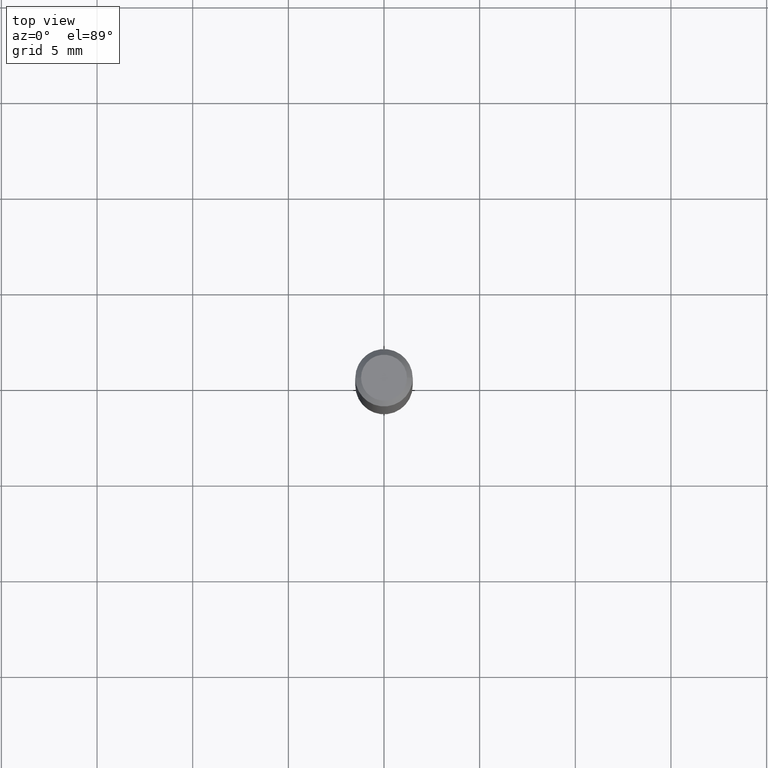
[diagram: clean part render]
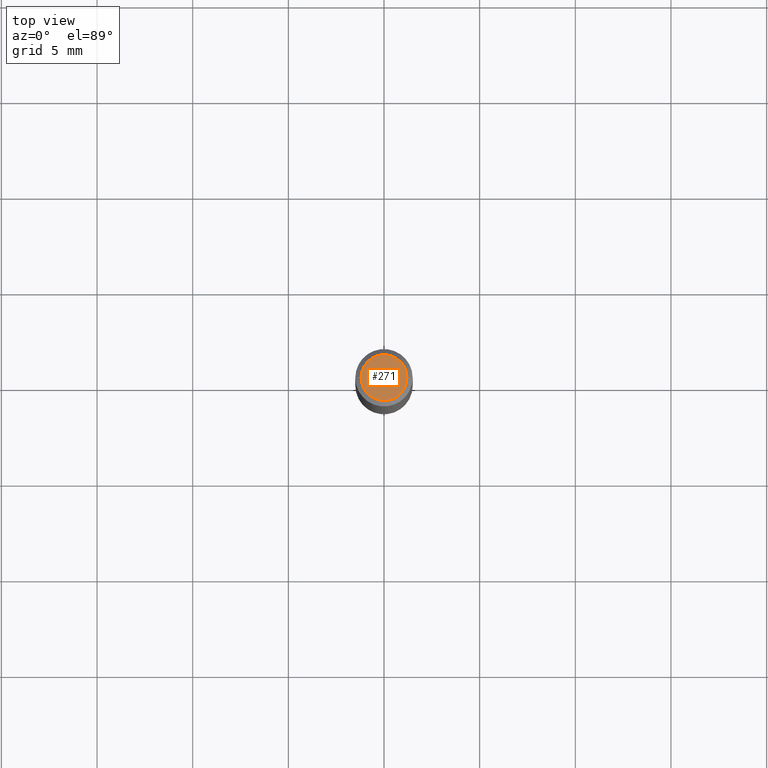
[diagram: same view with one face highlighted and labeled with its STEP entity id]
A machine part, top view. The second image highlights one B-rep face of the part: STEP entity #271.
In plain terms, the highlighted planar face has unit normal (0, -0, -1).
Its self-contained STEP definition (entity closure, byte-faithful):
#11 = CARTESIAN_POINT ( 'NONE',  ( 8.265746106709734507E-48, -1.180129479067563789E-33, -3.380025165646692144E-19 ) ) ;
#16 = DIRECTION ( 'NONE',  ( 1.000000000000000000, -6.982962677686266711E-15, 4.876185090822587894E-29 ) ) ;
#37 = ORIENTED_EDGE ( 'NONE', *, *, #444, .T. ) ;
#42 = CARTESIAN_POINT ( 'NONE',  ( 4.132873053354867254E-48, -5.900647395337818946E-34, -1.690012582823346072E-19 ) ) ;
#84 = FACE_OUTER_BOUND ( 'NONE', #452, .T. ) ;
#205 = DIRECTION ( 'NONE',  ( 2.438088387897960049E-29, -3.491481338843145188E-15, -1.000000000000000000 ) ) ;
#219 = CARTESIAN_POINT ( 'NONE',  ( 8.265746106709734507E-48, -1.180129479067563789E-33, -3.380025165646692144E-19 ) ) ;
#222 = DIRECTION ( 'NONE',  ( 1.000000000000000000, -6.982962677686266711E-15, 4.876185090822587894E-29 ) ) ;
#271 = ADVANCED_FACE ( 'NONE', ( #84 ), #317, .F. ) ;
#273 = CARTESIAN_POINT ( 'NONE',  ( -0.04724000000000000421, 3.504923541997677355E-16, -3.380025165670481712E-19 ) ) ;
#278 = VERTEX_POINT ( 'NONE', #273 ) ;
#283 = DIRECTION ( 'NONE',  ( -2.445468806185136597E-29, 3.491481338843145583E-15, 1.000000000000000000 ) ) ;
#286 = CARTESIAN_POINT ( 'NONE',  ( 0.04724000000000000421, -3.852183633974369345E-16, -3.380025165621689721E-19 ) ) ;
#299 = CIRCLE ( 'NONE', #389, 0.04724000000000000421 ) ;
#317 = PLANE ( 'NONE',  #396 ) ;
#339 = EDGE_CURVE ( 'NONE', #418, #278, #487, .T. ) ;
#345 = ORIENTED_EDGE ( 'NONE', *, *, #339, .T. ) ;
#373 = AXIS2_PLACEMENT_3D ( 'NONE', #219, #404, #222 ) ;
#389 = AXIS2_PLACEMENT_3D ( 'NONE', #11, #283, #16 ) ;
#396 = AXIS2_PLACEMENT_3D ( 'NONE', #42, #205, #457 ) ;
#404 = DIRECTION ( 'NONE',  ( -2.445468806185136597E-29, 3.491481338843145583E-15, 1.000000000000000000 ) ) ;
#418 = VERTEX_POINT ( 'NONE', #286 ) ;
#444 = EDGE_CURVE ( 'NONE', #278, #418, #299, .T. ) ;
#452 = EDGE_LOOP ( 'NONE', ( #37, #345 ) ) ;
#457 = DIRECTION ( 'NONE',  ( -1.000000000000000000, 6.982962677686265922E-15, -4.876176775795935793E-29 ) ) ;
#487 = CIRCLE ( 'NONE', #373, 0.04724000000000000421 ) ;